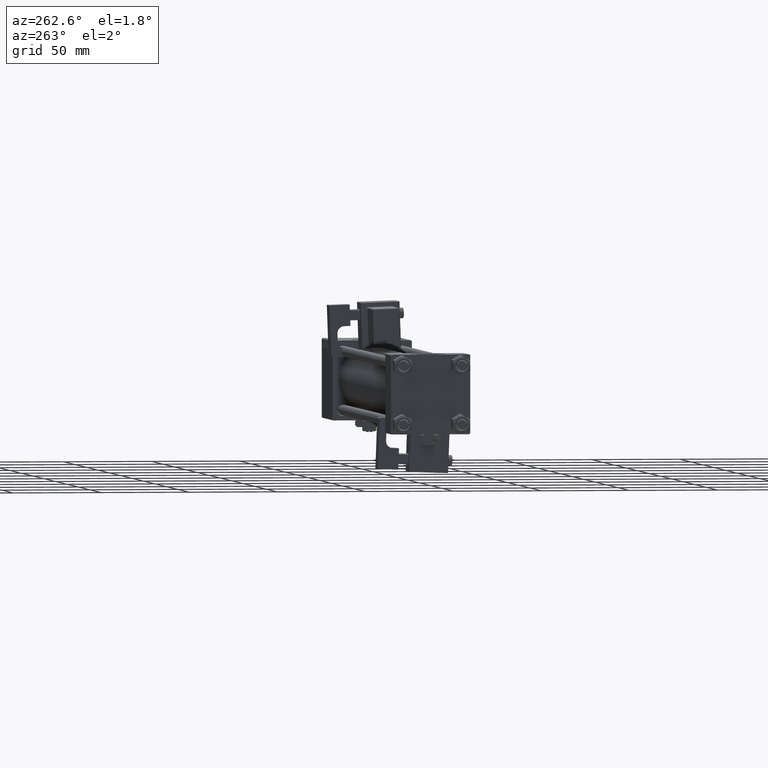
[diagram: clean part render]
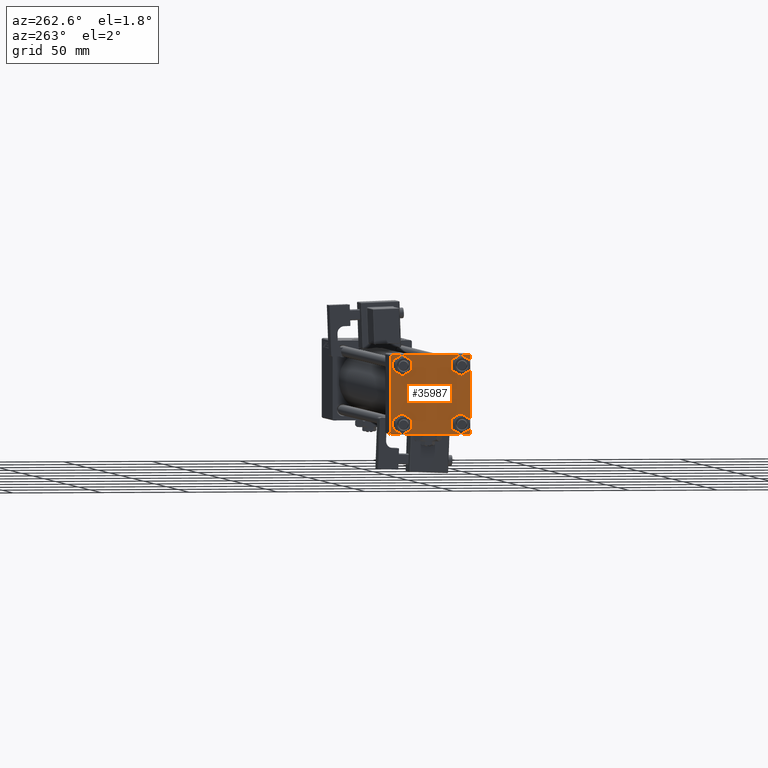
[diagram: same view with one face highlighted and labeled with its STEP entity id]
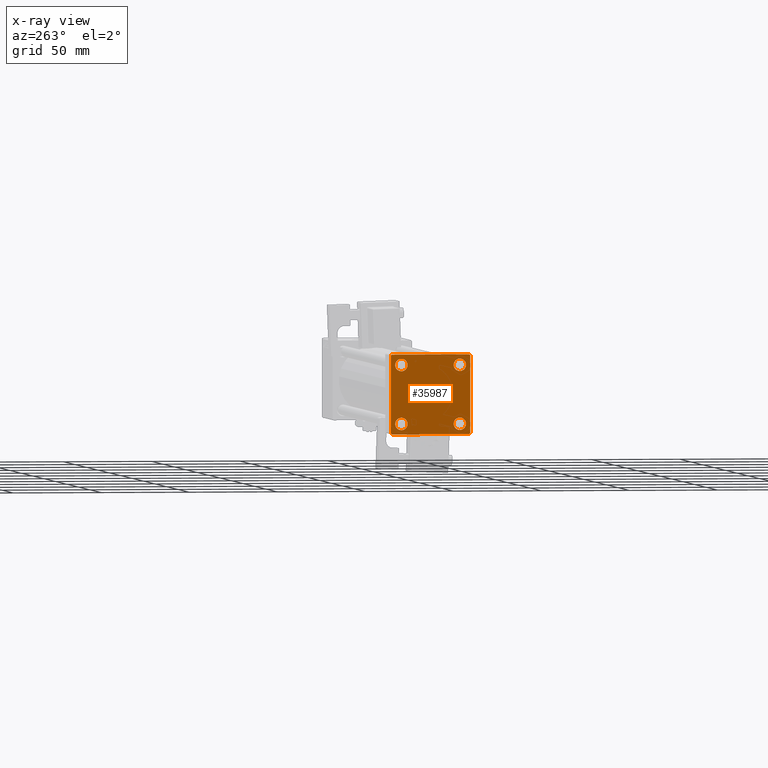
[diagram: x-ray of the same camera — body ghosted, the highlighted face saturated]
A machine part, auxiliary view. The second image highlights one B-rep face of the part: STEP entity #35987.
The next image is the same camera in x-ray: the body ghosted, the highlighted face saturated — about 0% of this face is hidden behind the body in this view.
In plain terms, the highlighted planar face has unit normal (-1, 0, 0).
Its self-contained STEP definition (entity closure, byte-faithful):
#81 = DIRECTION ( 'NONE',  ( 0.000000000000000000, 0.000000000000000000, 1.000000000000000000 ) ) ;
#1088 = CARTESIAN_POINT ( 'NONE',  ( 0.000000000000000000, 21.99999999999999289, 22.50000000000000355 ) ) ;
#2244 = CARTESIAN_POINT ( 'NONE',  ( 0.000000000000000000, -22.50000000000000000, -21.99999999999997158 ) ) ;
#2986 = EDGE_CURVE ( 'NONE', #55732, #40500, #18288, .T. ) ;
#3297 = VERTEX_POINT ( 'NONE', #2244 ) ;
#3829 = VECTOR ( 'NONE', #44795, 1000.000000000000000 ) ;
#5138 = AXIS2_PLACEMENT_3D ( 'NONE', #45560, #6063, #41487 ) ;
#5501 = DIRECTION ( 'NONE',  ( 0.000000000000000000, 0.000000000000000000, 1.000000000000000000 ) ) ;
#5570 = VECTOR ( 'NONE', #16166, 1000.000000000000000 ) ;
#6063 = DIRECTION ( 'NONE',  ( 1.000000000000000000, -0.000000000000000000, 0.000000000000000000 ) ) ;
#6606 = FACE_BOUND ( 'NONE', #10237, .T. ) ;
#6769 = EDGE_CURVE ( 'NONE', #54585, #43561, #48133, .T. ) ;
#7018 = EDGE_CURVE ( 'NONE', #25029, #18233, #39133, .T. ) ;
#7417 = DIRECTION ( 'NONE',  ( -0.000000000000000000, 0.7071067811865525687, 0.7071067811865425767 ) ) ;
#7439 = CARTESIAN_POINT ( 'NONE',  ( 0.000000000000000000, -16.59999999999999076, 20.10000000000000853 ) ) ;
#7590 = ORIENTED_EDGE ( 'NONE', *, *, #2986, .T. ) ;
#8176 = EDGE_LOOP ( 'NONE', ( #8581, #38702, #46093, #31648, #27073, #33022, #34848, #35845 ) ) ;
#8215 = EDGE_LOOP ( 'NONE', ( #46015, #16111 ) ) ;
#8581 = ORIENTED_EDGE ( 'NONE', *, *, #43273, .T. ) ;
#9366 = CARTESIAN_POINT ( 'NONE',  ( 0.000000000000000000, 22.25000000000014566, -22.24999999999984013 ) ) ;
#9510 = VERTEX_POINT ( 'NONE', #19556 ) ;
#9586 = CARTESIAN_POINT ( 'NONE',  ( 0.000000000000000000, -16.59999999999999076, -16.60000000000000853 ) ) ;
#10237 = EDGE_LOOP ( 'NONE', ( #32706, #33739 ) ) ;
#10974 = CARTESIAN_POINT ( 'NONE',  ( 0.000000000000000000, 0.000000000000000000, 0.000000000000000000 ) ) ;
#11708 = DIRECTION ( 'NONE',  ( 0.000000000000000000, 0.000000000000000000, 1.000000000000000000 ) ) ;
#11823 = FACE_BOUND ( 'NONE', #22607, .T. ) ;
#11958 = CARTESIAN_POINT ( 'NONE',  ( 0.000000000000000000, -21.99999999999997868, 22.50000000000000000 ) ) ;
#12456 = AXIS2_PLACEMENT_3D ( 'NONE', #9586, #22667, #5501 ) ;
#12673 = CARTESIAN_POINT ( 'NONE',  ( 0.000000000000000000, 22.24999999999999645, 22.24999999999999645 ) ) ;
#13813 = CARTESIAN_POINT ( 'NONE',  ( 0.000000000000000000, 16.59999999999999787, -13.10000000000000675 ) ) ;
#14201 = EDGE_CURVE ( 'NONE', #9510, #3297, #15498, .T. ) ;
#14417 = CARTESIAN_POINT ( 'NONE',  ( 0.000000000000000000, 22.50000000000000000, -21.99999999999996803 ) ) ;
#14446 = CIRCLE ( 'NONE', #5138, 3.499999999999996003 ) ;
#14809 = VERTEX_POINT ( 'NONE', #7439 ) ;
#14844 = CARTESIAN_POINT ( 'NONE',  ( 0.000000000000000000, 22.50000000000000000, 22.50000000000000355 ) ) ;
#14919 = CARTESIAN_POINT ( 'NONE',  ( 0.000000000000000000, -22.25000000000014566, -22.24999999999984013 ) ) ;
#15226 = DIRECTION ( 'NONE',  ( 1.000000000000000000, -0.000000000000000000, 0.000000000000000000 ) ) ;
#15442 = CARTESIAN_POINT ( 'NONE',  ( 0.000000000000000000, -16.59999999999999076, -20.10000000000000497 ) ) ;
#15498 = LINE ( 'NONE', #32621, #56396 ) ;
#15654 = CARTESIAN_POINT ( 'NONE',  ( 0.000000000000000000, 22.50000000000000000, 21.99999999999999645 ) ) ;
#16111 = ORIENTED_EDGE ( 'NONE', *, *, #16188, .T. ) ;
#16166 = DIRECTION ( 'NONE',  ( 0.000000000000000000, 0.000000000000000000, -1.000000000000000000 ) ) ;
#16188 = EDGE_CURVE ( 'NONE', #53639, #14809, #43496, .T. ) ;
#16212 = CIRCLE ( 'NONE', #12456, 3.499999999999996003 ) ;
#16650 = AXIS2_PLACEMENT_3D ( 'NONE', #28945, #47787, #55949 ) ;
#18090 = LINE ( 'NONE', #9366, #3829 ) ;
#18233 = VERTEX_POINT ( 'NONE', #11958 ) ;
#18288 = CIRCLE ( 'NONE', #22033, 3.499999999999996003 ) ;
#18817 = VERTEX_POINT ( 'NONE', #28885 ) ;
#18920 = AXIS2_PLACEMENT_3D ( 'NONE', #45719, #15226, #50648 ) ;
#19556 = CARTESIAN_POINT ( 'NONE',  ( 0.000000000000000000, -22.50000000000000000, 22.00000000000000000 ) ) ;
#19932 = LINE ( 'NONE', #29476, #53367 ) ;
#20011 = AXIS2_PLACEMENT_3D ( 'NONE', #20505, #29757, #48329 ) ;
#20505 = CARTESIAN_POINT ( 'NONE',  ( 0.000000000000000000, 16.59999999999999787, 16.60000000000000497 ) ) ;
#22033 = AXIS2_PLACEMENT_3D ( 'NONE', #51684, #38329, #37470 ) ;
#22607 = EDGE_LOOP ( 'NONE', ( #7590, #38568 ) ) ;
#22667 = DIRECTION ( 'NONE',  ( 1.000000000000000000, -0.000000000000000000, 0.000000000000000000 ) ) ;
#24036 = FACE_OUTER_BOUND ( 'NONE', #8176, .T. ) ;
#24535 = CARTESIAN_POINT ( 'NONE',  ( 0.000000000000000000, 16.59999999999999787, -20.10000000000000142 ) ) ;
#24615 = CARTESIAN_POINT ( 'NONE',  ( 0.000000000000000000, 16.59999999999999787, 13.10000000000000675 ) ) ;
#24898 = DIRECTION ( 'NONE',  ( -0.000000000000000000, 0.000000000000000000, 1.000000000000000000 ) ) ;
#25029 = VERTEX_POINT ( 'NONE', #1088 ) ;
#25157 = CARTESIAN_POINT ( 'NONE',  ( 0.000000000000000000, 22.50000000000000000, 22.50000000000000355 ) ) ;
#25746 = CARTESIAN_POINT ( 'NONE',  ( 0.000000000000000000, 22.50000000000000000, -22.49999999999999645 ) ) ;
#26314 = DIRECTION ( 'NONE',  ( 0.000000000000000000, 0.7071067811865474617, -0.7071067811865474617 ) ) ;
#26439 = CIRCLE ( 'NONE', #20011, 3.499999999999996003 ) ;
#26483 = VECTOR ( 'NONE', #33192, 1000.000000000000000 ) ;
#27073 = ORIENTED_EDGE ( 'NONE', *, *, #14201, .F. ) ;
#27173 = VERTEX_POINT ( 'NONE', #15654 ) ;
#28885 = CARTESIAN_POINT ( 'NONE',  ( 0.000000000000000000, 21.99999999999999289, -22.49999999999999645 ) ) ;
#28945 = CARTESIAN_POINT ( 'NONE',  ( 0.000000000000000000, -16.59999999999999076, 16.60000000000000853 ) ) ;
#29245 = FACE_BOUND ( 'NONE', #8215, .T. ) ;
#29276 = EDGE_CURVE ( 'NONE', #40500, #55732, #56024, .T. ) ;
#29476 = CARTESIAN_POINT ( 'NONE',  ( -0.000000000000000000, -22.24999999999984013, 22.25000000000015277 ) ) ;
#29757 = DIRECTION ( 'NONE',  ( 1.000000000000000000, -0.000000000000000000, 0.000000000000000000 ) ) ;
#30096 = LINE ( 'NONE', #12673, #34032 ) ;
#30930 = CARTESIAN_POINT ( 'NONE',  ( 0.000000000000000000, 16.59999999999999787, 20.10000000000000142 ) ) ;
#31648 = ORIENTED_EDGE ( 'NONE', *, *, #33219, .T. ) ;
#32087 = EDGE_CURVE ( 'NONE', #50013, #44226, #26439, .T. ) ;
#32544 = DIRECTION ( 'NONE',  ( 0.000000000000000000, -1.000000000000000000, -7.709882115452476934E-17 ) ) ;
#32621 = CARTESIAN_POINT ( 'NONE',  ( 0.000000000000000000, -22.50000000000000000, 22.50000000000000000 ) ) ;
#32706 = ORIENTED_EDGE ( 'NONE', *, *, #57246, .T. ) ;
#32733 = DIRECTION ( 'NONE',  ( -1.000000000000000000, 0.000000000000000000, -0.000000000000000000 ) ) ;
#33022 = ORIENTED_EDGE ( 'NONE', *, *, #56797, .T. ) ;
#33192 = DIRECTION ( 'NONE',  ( 0.000000000000000000, -0.7071067811865426878, 0.7071067811865524577 ) ) ;
#33219 = EDGE_CURVE ( 'NONE', #38591, #3297, #54698, .T. ) ;
#33739 = ORIENTED_EDGE ( 'NONE', *, *, #32087, .T. ) ;
#34032 = VECTOR ( 'NONE', #26314, 1000.000000000000114 ) ;
#34848 = ORIENTED_EDGE ( 'NONE', *, *, #7018, .F. ) ;
#34956 = CARTESIAN_POINT ( 'NONE',  ( 0.000000000000000000, -16.59999999999999076, 16.60000000000000853 ) ) ;
#35845 = ORIENTED_EDGE ( 'NONE', *, *, #36113, .T. ) ;
#35987 = ADVANCED_FACE ( 'NONE', ( #29245, #42024, #11823, #6606, #24036 ), #37386, .T. ) ;
#36113 = EDGE_CURVE ( 'NONE', #25029, #27173, #30096, .T. ) ;
#37270 = EDGE_CURVE ( 'NONE', #18817, #38591, #39109, .T. ) ;
#37386 = PLANE ( 'NONE',  #47009 ) ;
#37470 = DIRECTION ( 'NONE',  ( 0.000000000000000000, 0.000000000000000000, 1.000000000000000000 ) ) ;
#38329 = DIRECTION ( 'NONE',  ( 1.000000000000000000, -0.000000000000000000, 0.000000000000000000 ) ) ;
#38568 = ORIENTED_EDGE ( 'NONE', *, *, #29276, .T. ) ;
#38591 = VERTEX_POINT ( 'NONE', #51205 ) ;
#38702 = ORIENTED_EDGE ( 'NONE', *, *, #44716, .T. ) ;
#39109 = LINE ( 'NONE', #25746, #47095 ) ;
#39125 = VERTEX_POINT ( 'NONE', #14417 ) ;
#39133 = LINE ( 'NONE', #14844, #50007 ) ;
#39679 = DIRECTION ( 'NONE',  ( 0.000000000000000000, -1.000000000000000000, -2.312964634635742957E-16 ) ) ;
#40500 = VERTEX_POINT ( 'NONE', #24535 ) ;
#41406 = EDGE_CURVE ( 'NONE', #14809, #53639, #43555, .T. ) ;
#41487 = DIRECTION ( 'NONE',  ( 0.000000000000000000, 0.000000000000000000, 1.000000000000000000 ) ) ;
#42024 = FACE_BOUND ( 'NONE', #52662, .T. ) ;
#42951 = ORIENTED_EDGE ( 'NONE', *, *, #6769, .T. ) ;
#43273 = EDGE_CURVE ( 'NONE', #27173, #39125, #46654, .T. ) ;
#43332 = CARTESIAN_POINT ( 'NONE',  ( 0.000000000000000000, -16.59999999999999076, 13.10000000000001030 ) ) ;
#43446 = CARTESIAN_POINT ( 'NONE',  ( 0.000000000000000000, -16.59999999999999076, -13.10000000000001030 ) ) ;
#43496 = CIRCLE ( 'NONE', #16650, 3.499999999999996003 ) ;
#43555 = CIRCLE ( 'NONE', #53745, 3.499999999999996003 ) ;
#43561 = VERTEX_POINT ( 'NONE', #15442 ) ;
#43749 = ORIENTED_EDGE ( 'NONE', *, *, #54167, .T. ) ;
#44226 = VERTEX_POINT ( 'NONE', #30930 ) ;
#44716 = EDGE_CURVE ( 'NONE', #39125, #18817, #18090, .T. ) ;
#44795 = DIRECTION ( 'NONE',  ( -0.000000000000000000, -0.7071067811865426878, -0.7071067811865524577 ) ) ;
#45560 = CARTESIAN_POINT ( 'NONE',  ( 0.000000000000000000, 16.59999999999999787, 16.60000000000000497 ) ) ;
#45719 = CARTESIAN_POINT ( 'NONE',  ( 0.000000000000000000, 16.59999999999999787, -16.60000000000000497 ) ) ;
#46015 = ORIENTED_EDGE ( 'NONE', *, *, #41406, .T. ) ;
#46093 = ORIENTED_EDGE ( 'NONE', *, *, #37270, .T. ) ;
#46654 = LINE ( 'NONE', #25157, #5570 ) ;
#47009 = AXIS2_PLACEMENT_3D ( 'NONE', #10974, #32733, #24898 ) ;
#47095 = VECTOR ( 'NONE', #39679, 1000.000000000000000 ) ;
#47787 = DIRECTION ( 'NONE',  ( 1.000000000000000000, -0.000000000000000000, 0.000000000000000000 ) ) ;
#48133 = CIRCLE ( 'NONE', #50926, 3.499999999999996003 ) ;
#48329 = DIRECTION ( 'NONE',  ( 0.000000000000000000, 0.000000000000000000, 1.000000000000000000 ) ) ;
#50007 = VECTOR ( 'NONE', #32544, 1000.000000000000000 ) ;
#50013 = VERTEX_POINT ( 'NONE', #24615 ) ;
#50648 = DIRECTION ( 'NONE',  ( 0.000000000000000000, 0.000000000000000000, 1.000000000000000000 ) ) ;
#50926 = AXIS2_PLACEMENT_3D ( 'NONE', #51494, #51778, #11708 ) ;
#51205 = CARTESIAN_POINT ( 'NONE',  ( 0.000000000000000000, -21.99999999999997158, -22.50000000000000711 ) ) ;
#51212 = DIRECTION ( 'NONE',  ( 0.000000000000000000, 0.000000000000000000, -1.000000000000000000 ) ) ;
#51494 = CARTESIAN_POINT ( 'NONE',  ( 0.000000000000000000, -16.59999999999999076, -16.60000000000000853 ) ) ;
#51684 = CARTESIAN_POINT ( 'NONE',  ( 0.000000000000000000, 16.59999999999999787, -16.60000000000000497 ) ) ;
#51778 = DIRECTION ( 'NONE',  ( 1.000000000000000000, -0.000000000000000000, 0.000000000000000000 ) ) ;
#52662 = EDGE_LOOP ( 'NONE', ( #42951, #43749 ) ) ;
#52678 = DIRECTION ( 'NONE',  ( 1.000000000000000000, -0.000000000000000000, 0.000000000000000000 ) ) ;
#53367 = VECTOR ( 'NONE', #7417, 999.9999999999998863 ) ;
#53639 = VERTEX_POINT ( 'NONE', #43332 ) ;
#53745 = AXIS2_PLACEMENT_3D ( 'NONE', #34956, #52678, #81 ) ;
#54167 = EDGE_CURVE ( 'NONE', #43561, #54585, #16212, .T. ) ;
#54585 = VERTEX_POINT ( 'NONE', #43446 ) ;
#54698 = LINE ( 'NONE', #14919, #26483 ) ;
#55732 = VERTEX_POINT ( 'NONE', #13813 ) ;
#55949 = DIRECTION ( 'NONE',  ( 0.000000000000000000, 0.000000000000000000, 1.000000000000000000 ) ) ;
#56024 = CIRCLE ( 'NONE', #18920, 3.499999999999996003 ) ;
#56396 = VECTOR ( 'NONE', #51212, 1000.000000000000000 ) ;
#56797 = EDGE_CURVE ( 'NONE', #9510, #18233, #19932, .T. ) ;
#57246 = EDGE_CURVE ( 'NONE', #44226, #50013, #14446, .T. ) ;